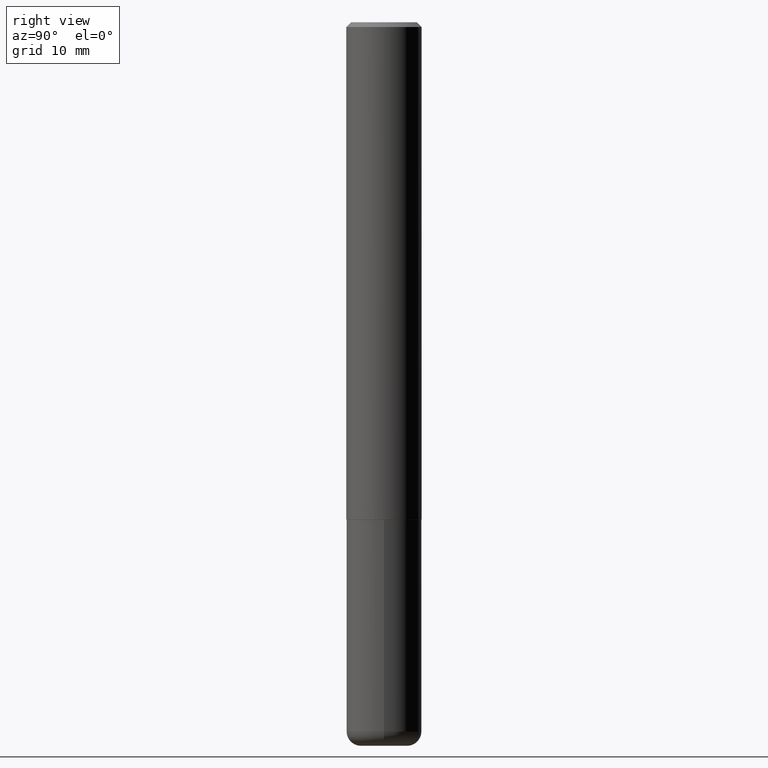
[diagram: clean part render]
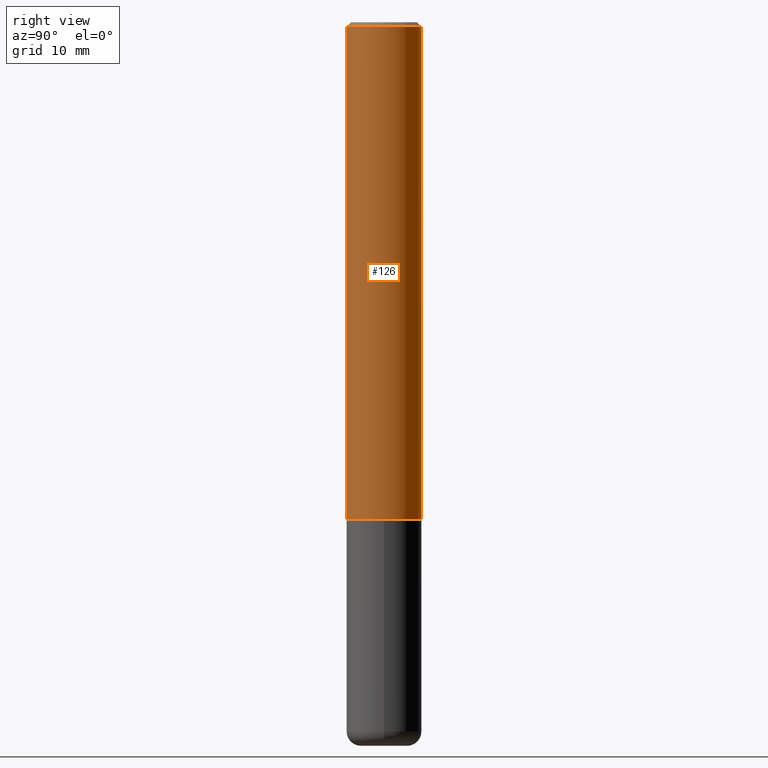
[diagram: same view with one face highlighted and labeled with its STEP entity id]
A machine part, right view. The second image highlights one B-rep face of the part: STEP entity #126.
In plain terms, the highlighted cylindrical surface (partial cylindrical patch) has radius 3.9688 mm, axis along (-0, 0, 1).
Its self-contained STEP definition (entity closure, byte-faithful):
#12 = CARTESIAN_POINT ( 'NONE',  ( 5.040730454096381281E-29, -7.198553011844980434E-15, -2.061500000000000110 ) ) ;
#15 = AXIS2_PLACEMENT_3D ( 'NONE', #292, #364, #333 ) ;
#35 = AXIS2_PLACEMENT_3D ( 'NONE', #12, #267, #396 ) ;
#36 = DIRECTION ( 'NONE',  ( -2.445176063107631214E-29, 3.491900563592034843E-15, 1.000000000000000000 ) ) ;
#37 = CARTESIAN_POINT ( 'NONE',  ( -1.091087918388430659E-15, -0.1562500000000074940, -2.061499999999999666 ) ) ;
#42 = VERTEX_POINT ( 'NONE', #137 ) ;
#52 = EDGE_LOOP ( 'NONE', ( #224, #273, #262, #198 ) ) ;
#64 = CARTESIAN_POINT ( 'NONE',  ( 1.110223024625157329E-15, 0.1562500000000001388, -5.456094630612559989E-16 ) ) ;
#66 = CARTESIAN_POINT ( 'NONE',  ( 0.000000000000000000, 0.000000000000000000, 0.000000000000000000 ) ) ;
#126 = ADVANCED_FACE ( 'NONE', ( #392 ), #305, .T. ) ;
#131 = EDGE_CURVE ( 'NONE', #149, #233, #212, .T. ) ;
#137 = CARTESIAN_POINT ( 'NONE',  ( -1.071952812151801215E-15, -0.1562500000000000833, -0.01999999999999948694 ) ) ;
#140 = DIRECTION ( 'NONE',  ( -6.982962677686265922E-15, -1.000000000000000000, 3.491900563592035238E-15 ) ) ;
#149 = VERTEX_POINT ( 'NONE', #37 ) ;
#157 = CIRCLE ( 'NONE', #15, 0.1562500000000000000 ) ;
#193 = VERTEX_POINT ( 'NONE', #278 ) ;
#198 = ORIENTED_EDGE ( 'NONE', *, *, #418, .F. ) ;
#212 = CIRCLE ( 'NONE', #35, 0.1562500000000002776 ) ;
#224 = ORIENTED_EDGE ( 'NONE', *, *, #131, .T. ) ;
#227 = EDGE_CURVE ( 'NONE', #42, #193, #157, .T. ) ;
#230 = EDGE_CURVE ( 'NONE', #233, #193, #387, .T. ) ;
#233 = VERTEX_POINT ( 'NONE', #261 ) ;
#237 = LINE ( 'NONE', #324, #258 ) ;
#241 = AXIS2_PLACEMENT_3D ( 'NONE', #66, #389, #140 ) ;
#258 = VECTOR ( 'NONE', #388, 39.37007874015748143 ) ;
#261 = CARTESIAN_POINT ( 'NONE',  ( 1.110223024625183362E-15, 0.1562499999999930611, -2.061500000000000554 ) ) ;
#262 = ORIENTED_EDGE ( 'NONE', *, *, #227, .F. ) ;
#267 = DIRECTION ( 'NONE',  ( -2.445176063107630933E-29, 3.491900563592034843E-15, 1.000000000000000000 ) ) ;
#273 = ORIENTED_EDGE ( 'NONE', *, *, #230, .T. ) ;
#278 = CARTESIAN_POINT ( 'NONE',  ( 1.091087918388479568E-15, 0.1562499999999999445, -0.02000000000000057981 ) ) ;
#292 = CARTESIAN_POINT ( 'NONE',  ( 4.890352126215269679E-31, -6.983801127184080238E-17, -0.02000000000000003511 ) ) ;
#305 = CYLINDRICAL_SURFACE ( 'NONE', #241, 0.1562500000000001388 ) ;
#324 = CARTESIAN_POINT ( 'NONE',  ( -1.091087918388479962E-15, -0.1562500000000001388, 5.456094630612559989E-16 ) ) ;
#333 = DIRECTION ( 'NONE',  ( -6.982962677686265133E-15, -1.000000000000000000, 3.496765431890256920E-15 ) ) ;
#356 = VECTOR ( 'NONE', #36, 39.37007874015748143 ) ;
#364 = DIRECTION ( 'NONE',  ( -2.445176063107630933E-29, 3.491900563592034843E-15, 1.000000000000000000 ) ) ;
#387 = LINE ( 'NONE', #64, #356 ) ;
#388 = DIRECTION ( 'NONE',  ( -2.445176063107631214E-29, 3.491900563592034843E-15, 1.000000000000000000 ) ) ;
#389 = DIRECTION ( 'NONE',  ( -2.445176063107630933E-29, 3.491900563592034843E-15, 1.000000000000000000 ) ) ;
#392 = FACE_OUTER_BOUND ( 'NONE', #52, .T. ) ;
#396 = DIRECTION ( 'NONE',  ( -6.982962677686265922E-15, -1.000000000000000000, 3.496765431890250609E-15 ) ) ;
#418 = EDGE_CURVE ( 'NONE', #149, #42, #237, .T. ) ;